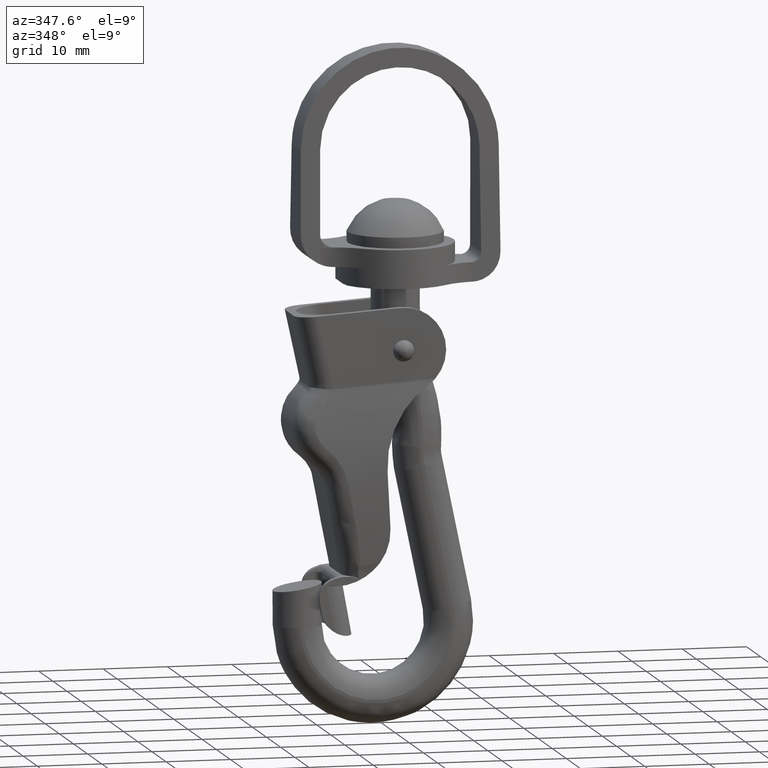
[diagram: clean part render]
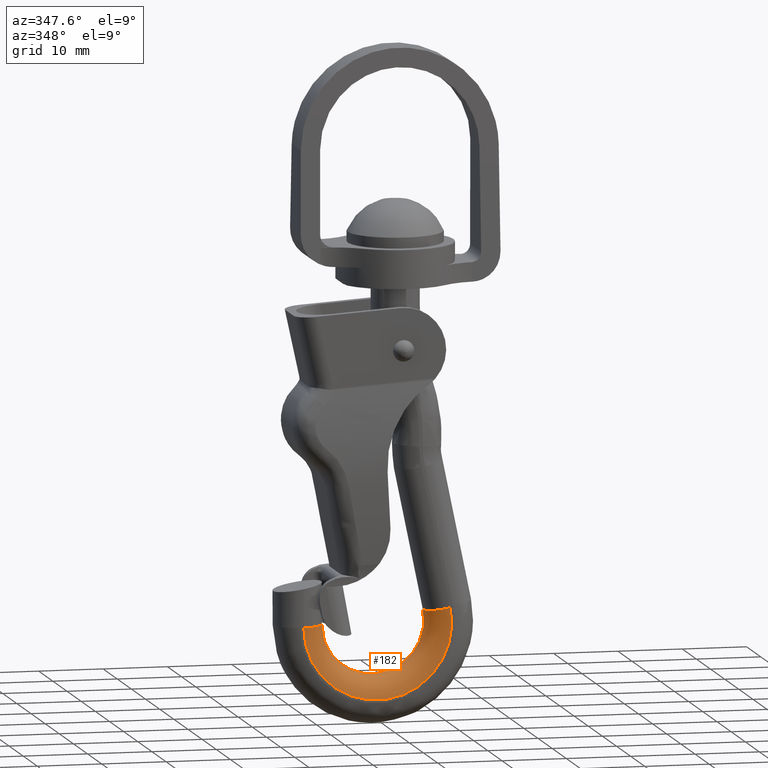
[diagram: same view with one face highlighted and labeled with its STEP entity id]
A machine part, auxiliary view. The second image highlights one B-rep face of the part: STEP entity #182.
In plain terms, the highlighted face is a freeform B-spline surface patch.
Its self-contained STEP definition (entity closure, byte-faithful):
#182=ADVANCED_FACE('',(#647),#646,.T.);
#646=( BOUNDED_SURFACE() B_SPLINE_SURFACE( 2,2,((#2160,#2161,#2162,#2163,#2164,#2165,#2166),(#2167,#2168,#2169,#2170,#2171,#2172,#2173),(#2174,#2175,#2176,#2177,#2178,#2179,#2180),(#2181,#2182,#2183,#2184,#2185,#2186,#2187),(#2188,#2189,#2190,#2191,#2192,#2193,#2194),(#2195,#2196,#2197,#2198,#2199,#2200,#2201),(#2202,#2203,#2204,#2205,#2206,#2207,#2208)), .UNSPECIFIED.,.F.,.F.,.F.) B_SPLINE_SURFACE_WITH_KNOTS((3,2,2,3),(3,2,2,3),(-1.55147990697E+00,0.00000000000E+00,1.57079632679E+00,1.59011301050E+00),(2.29344182413E-01,3.33333333333E-01,6.66666666667E-01,7.72306599575E-01), .UNSPECIFIED. ) GEOMETRIC_REPRESENTATION_ITEM() RATIONAL_B_SPLINE_SURFACE(((7.79768462053E-01,8.38011133158E-01,9.92885041855E-01,4.96442520927E-01,9.92885041855E-01,8.35552578044E-01,7.77943659761E-01),(5.58159395303E-01,5.99849583696E-01,7.10708552009E-01,3.55354276004E-01,7.10708552009E-01,5.98089746381E-01,5.56853199178E-01),(7.85356238821E-01,8.44016273619E-01,1.00000000000E+00,5.00000000000E-01,1.00000000000E+00,8.41540100638E-01,7.83518360099E-01),(5.55330722118E-01,5.96809630508E-01,7.07106781187E-01,3.53553390593E-01,7.07106781187E-01,5.95058711801E-01,5.54031145610E-01),(7.85356238821E-01,8.44016273619E-01,1.00000000000E+00,5.00000000000E-01,1.00000000000E+00,8.41540100638E-01,7.83518360099E-01),(7.82527526992E-01,8.40976278903E-01,9.96398179974E-01,4.98199089987E-01,9.96398179974E-01,8.38509024650E-01,7.80696267979E-01),(7.79768386668E-01,8.38011052143E-01,9.92884945867E-01,4.96442472934E-01,9.92884945867E-01,8.35552497266E-01,7.77943584553E-01))) REPRESENTATION_ITEM('') SURFACE() );
#647=FACE_OUTER_BOUND('',#2209,.T.);
#2160=CARTESIAN_POINT('',(-1.49782976943E+01,3.50000000000E+00,-4.24428571425E+01));
#2161=CARTESIAN_POINT('',(-1.49782976944E+01,3.50000000000E+00,-4.61240361465E+01));
#2162=CARTESIAN_POINT('',(-1.28406261663E+01,3.50000000000E+00,-4.91209410995E+01));
#2163=CARTESIAN_POINT('',(-1.27384545629E+00,3.50000000000E+00,-6.53369695885E+01));
#2164=CARTESIAN_POINT('',(6.98625680867E+00,3.50000000000E+00,-4.72118294091E+01));
#2165=CARTESIAN_POINT('',(8.54161343712E+00,3.50000000000E+00,-4.37989107774E+01));
#2166=CARTESIAN_POINT('',(7.78574582889E+00,3.50000000000E+00,-4.01252461238E+01));
#2167=CARTESIAN_POINT('',(-1.15388573311E+01,3.49999994233E+00,-4.24428571426E+01));
#2168=CARTESIAN_POINT('',(-1.15388573312E+01,3.49999994233E+00,-4.50230626061E+01));
#2169=CARTESIAN_POINT('',(-1.00405243922E+01,3.49999994233E+00,-4.71236479145E+01));
#2170=CARTESIAN_POINT('',(-1.93315695601E+00,3.49999994233E+00,-5.84897578643E+01));
#2171=CARTESIAN_POINT('',(3.85649928465E+00,3.49999994233E+00,-4.57855167319E+01));
#2172=CARTESIAN_POINT('',(4.94667709619E+00,3.49999994233E+00,-4.33933398531E+01));
#2173=CARTESIAN_POINT('',(4.41687571181E+00,3.49999994233E+00,-4.08184013348E+01));
#2174=CARTESIAN_POINT('',(-1.14788308200E+01,6.10834225307E-02,-4.24428571426E+01));
#2175=CARTESIAN_POINT('',(-1.14788308200E+01,6.10834225307E-02,-4.50038479684E+01));
#2176=CARTESIAN_POINT('',(-9.99165587793E+00,6.10834225307E-02,-4.70887903421E+01));
#2177=CARTESIAN_POINT('',(-1.94466352827E+00,6.10834225306E-02,-5.83702575424E+01));
#2178=CARTESIAN_POINT('',(3.80187748429E+00,6.10834225307E-02,-4.57606241434E+01));
#2179=CARTESIAN_POINT('',(4.88393680605E+00,6.10834225307E-02,-4.33862616645E+01));
#2180=CARTESIAN_POINT('',(4.35808082129E+00,6.10834225307E-02,-4.08304985612E+01));
#2181=CARTESIAN_POINT('',(-1.14177473974E+01,-3.43838351052E+00,-4.24428571426E+01));
#2182=CARTESIAN_POINT('',(-1.14177473975E+01,-3.43838351052E+00,-4.49842950107E+01));
#2183=CARTESIAN_POINT('',(-9.94192691574E+00,-3.43838351052E+00,-4.70533190181E+01));
#2184=CARTESIAN_POINT('',(-1.95637270147E+00,-3.43838351052E+00,-5.82486531292E+01));
#2185=CARTESIAN_POINT('',(3.74629393549E+00,-3.43838351052E+00,-4.57352932608E+01));
#2186=CARTESIAN_POINT('',(4.82009182190E+00,-3.43838351052E+00,-4.33790588473E+01));
#2187=CARTESIAN_POINT('',(4.29825070503E+00,-3.43838351052E+00,-4.08428087885E+01));
#2188=CARTESIAN_POINT('',(-1.49172143305E+01,-3.49946693305E+00,-4.24428571425E+01));
#2189=CARTESIAN_POINT('',(-1.49172143306E+01,-3.49946693305E+00,-4.61044832075E+01));
#2190=CARTESIAN_POINT('',(-1.27908972519E+01,-3.49946693305E+00,-4.90854698095E+01));
#2191=CARTESIAN_POINT('',(-1.28555461824E+00,-3.49946693305E+00,-6.52153652922E+01));
#2192=CARTESIAN_POINT('',(6.93067331328E+00,-3.49946693305E+00,-4.71864985508E+01));
#2193=CARTESIAN_POINT('',(8.47776851431E+00,-3.49946693305E+00,-4.37917079671E+01));
#2194=CARTESIAN_POINT('',(7.72591577011E+00,-3.49946693305E+00,-4.01375563393E+01));
#2195=CARTESIAN_POINT('',(-1.49477541638E+01,-3.50000000782E+00,-4.24428571425E+01));
#2196=CARTESIAN_POINT('',(-1.49477541639E+01,-3.50000000782E+00,-4.61142590853E+01));
#2197=CARTESIAN_POINT('',(-1.28157602041E+01,-3.50000000782E+00,-4.91032043810E+01));
#2198=CARTESIAN_POINT('',(-1.27970039163E+00,-3.50000000782E+00,-6.52761637601E+01));
#2199=CARTESIAN_POINT('',(6.95846337881E+00,-3.50000000782E+00,-4.71991632133E+01));
#2200=CARTESIAN_POINT('',(8.50968904353E+00,-3.50000000782E+00,-4.37953091543E+01));
#2201=CARTESIAN_POINT('',(7.75582898882E+00,-3.50000000782E+00,-4.01314016041E+01));
#2202=CARTESIAN_POINT('',(-1.49782986492E+01,-3.50000000000E+00,-4.24428571425E+01));
#2203=CARTESIAN_POINT('',(-1.49782986493E+01,-3.50000000000E+00,-4.61240364521E+01));
#2204=CARTESIAN_POINT('',(-1.28406269437E+01,-3.50000000000E+00,-4.91209416539E+01));
#2205=CARTESIAN_POINT('',(-1.27384527325E+00,-3.50000000000E+00,-6.53369714894E+01));
#2206=CARTESIAN_POINT('',(6.98625767755E+00,-3.50000000000E+00,-4.72118298050E+01));
#2207=CARTESIAN_POINT('',(8.54161443514E+00,-3.50000000000E+00,-4.37989108900E+01));
#2208=CARTESIAN_POINT('',(7.78574676415E+00,-3.50000000000E+00,-4.01252459314E+01));
#2209=EDGE_LOOP('',(#4098,#4099,#4100,#4101));
#4098=ORIENTED_EDGE('',*,*,#4890,.T.);
#4099=ORIENTED_EDGE('',*,*,#4891,.F.);
#4100=ORIENTED_EDGE('',*,*,#4887,.F.);
#4101=ORIENTED_EDGE('',*,*,#4892,.F.);
#4887=EDGE_CURVE('',#5873,#5874,#5875,.T.);
#4890=EDGE_CURVE('',#5893,#5894,#5895,.T.);
#4891=EDGE_CURVE('',#5874,#5894,#5901,.T.);
#4892=EDGE_CURVE('',#5893,#5873,#5907,.T.);
#5873=VERTEX_POINT('',#8602);
#5874=VERTEX_POINT('',#8603);
#5875=CIRCLE('',#8607,3.50000000000E+00);
#5893=VERTEX_POINT('',#8614);
#5894=VERTEX_POINT('',#8615);
#5895=CIRCLE('',#8619,3.50000000000E+00);
#5901=CIRCLE('',#8623,1.15000000000E+01);
#5907=CIRCLE('',#8627,1.15000000000E+01);
#8602=CARTESIAN_POINT('',(7.78574588640E+00,3.50000000000E+00,-4.01252461122E+01));
#8603=CARTESIAN_POINT('',(7.78574588640E+00,-3.50000000000E+00,-4.01252461122E+01));
#8604=CARTESIAN_POINT('',(7.78574588640E+00,2.22044604925E-13,-4.01252461122E+01));
#8605=DIRECTION('',(-2.01531393974E-01,4.99430343246E-17,9.79482055600E-01));
#8606=DIRECTION('',(7.14962567578E-15,1.00000000000E+00,1.42006786807E-15));
#8607=AXIS2_PLACEMENT_3D('',#8604,#8605,#8606);
#8614=CARTESIAN_POINT('',(-1.49782977530E+01,3.50000000000E+00,-4.24428571429E+01));
#8615=CARTESIAN_POINT('',(-1.49782977530E+01,-3.50000000000E+00,-4.24428571429E+01));
#8616=CARTESIAN_POINT('',(-1.49782977530E+01,2.22044604925E-13,-4.24428571429E+01));
#8617=DIRECTION('',(0.00000000000E+00,0.00000000000E+00,-1.00000000000E+00));
#8618=DIRECTION('',(-4.62458305157E-15,1.00000000000E+00,0.00000000000E+00));
#8619=AXIS2_PLACEMENT_3D('',#8616,#8617,#8618);
#8620=CARTESIAN_POINT('',(-3.47829775300E+00,-3.50000000000E+00,-4.24428571429E+01));
#8621=DIRECTION('',(-0.00000000000E+00,1.00000000000E+00,0.00000000000E+00));
#8622=DIRECTION('',(9.79482055600E-01,0.00000000000E+00,2.01531393974E-01));
#8623=AXIS2_PLACEMENT_3D('',#8620,#8621,#8622);
#8624=CARTESIAN_POINT('',(-3.47829775300E+00,3.50000000000E+00,-4.24428571429E+01));
#8625=DIRECTION('',(0.00000000000E+00,-1.00000000000E+00,0.00000000000E+00));
#8626=DIRECTION('',(9.79482055600E-01,0.00000000000E+00,2.01531393974E-01));
#8627=AXIS2_PLACEMENT_3D('',#8624,#8625,#8626);